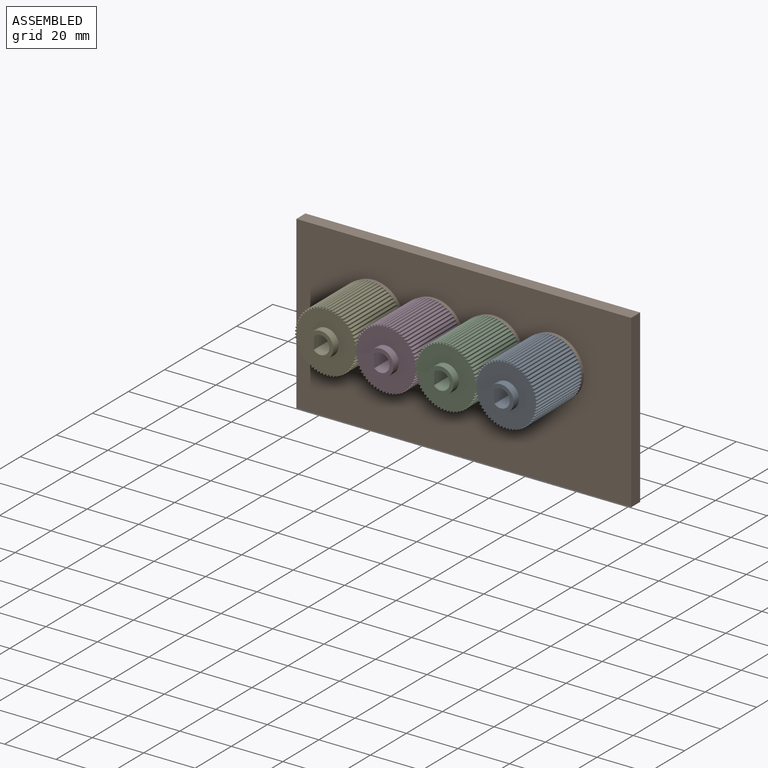
[diagram: assembled view]
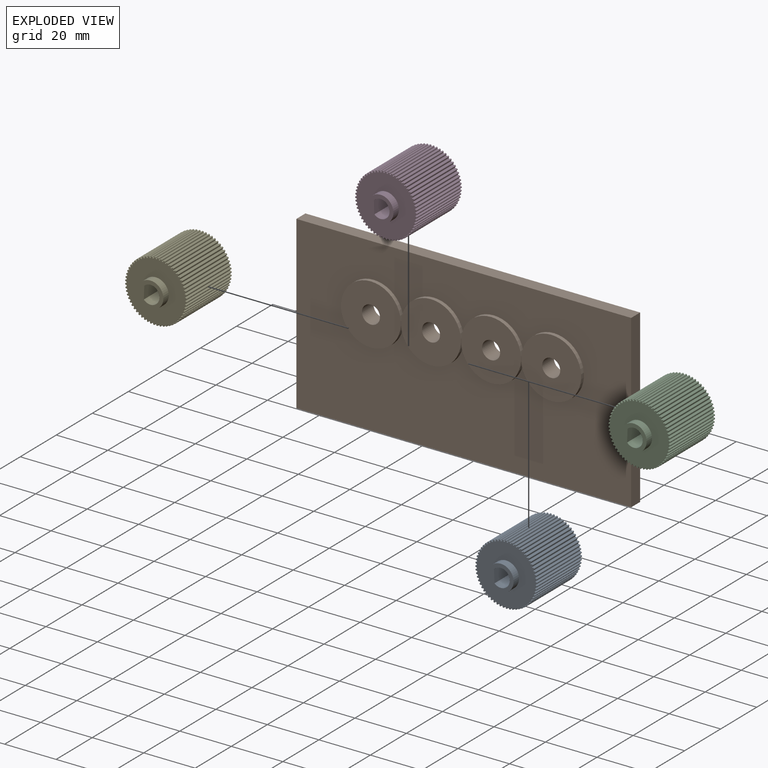
[diagram: exploded view]
GUIDED TOUR — MATED ASSEMBLY (Onshape document a461b10b5617b8be7ff6b4a0, AutoMate assembly a461b10b5617b8be7ff6b4a0_db991699ef675610364aaf17_fc4ede2106fa1990db386158_default)

This assembly has 5 components, labeled P0..P4 below (a component is one placed occurrence of a part; the same part can appear more than once), held together by 4 mates. A mate is a constraint between two components; its type names the relative motion it leaves free:
  REVOLUTE — leaves rotation about the listed axis free (a hinge).
Axis/direction vectors are unit vectors and 'through' points are millimeter coordinates, both in the assembly's world frame.

MATES
  1. REVOLUTE "Revolute 1": P1 <-> P4, axis (0.000, -1.000, 0.000) through (-35.00, -4.00, 8.23) mm
  2. REVOLUTE "Revolute 3": P1 <-> P2, axis (0.000, -1.000, 0.000) through (11.67, -4.00, 8.23) mm
  3. REVOLUTE "Revolute 4": P0 <-> P1, axis (0.000, 1.000, 0.000) through (35.00, -1.00, 8.23) mm
  4. REVOLUTE "Revolute 2": P3 <-> P1, axis (0.000, 1.000, 0.000) through (-11.67, -1.00, 8.23) mm

ASSEMBLY ORDER
  1. P1 — the base component [order verified]
  2. P2 [order verified]
  3. P4 [order verified]
  4. P0 [order verified]
  5. P3 [order verified]
Order-tag legend:
  [order verified] — this step's position reverses a verified removal order: the component was checked to insert without passing through the ones already placed.

Of the 5 components, 1 carries the full construction recipe — the FeatureScript program that regenerates the part's solid from scratch; the rest are supplied as boundary geometry only.
Each toured component is shown spotlighted twice — in the assembled view, then in the exploded view, where a leader line traces a displaced component back to its assembled socket (saturated green if recipe-attached, orange if geometry-only; every other component desaturated gray) — followed by its recipe or geometry summary and the mates that hold it.
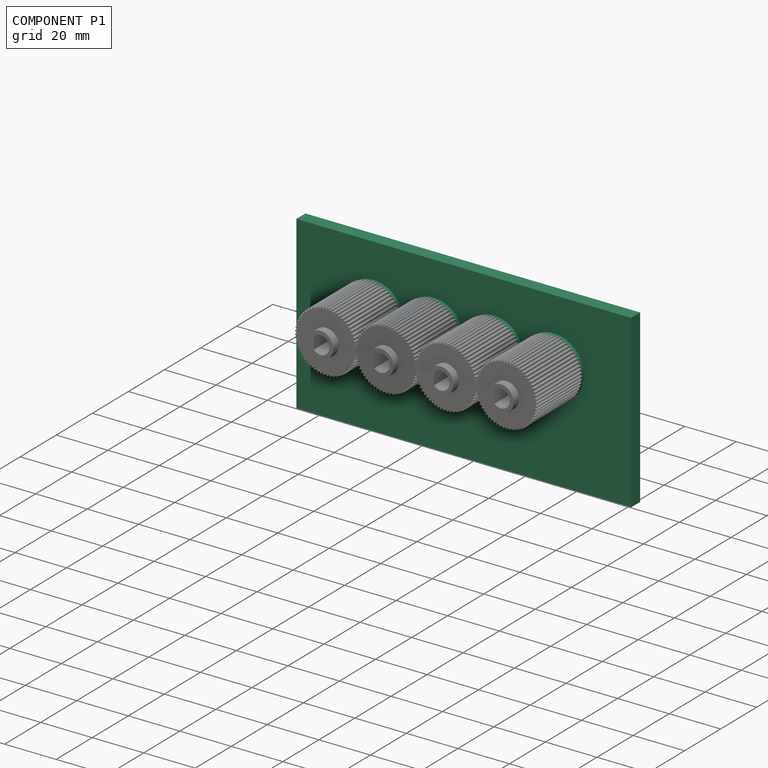
[diagram: component P1 — assembled]
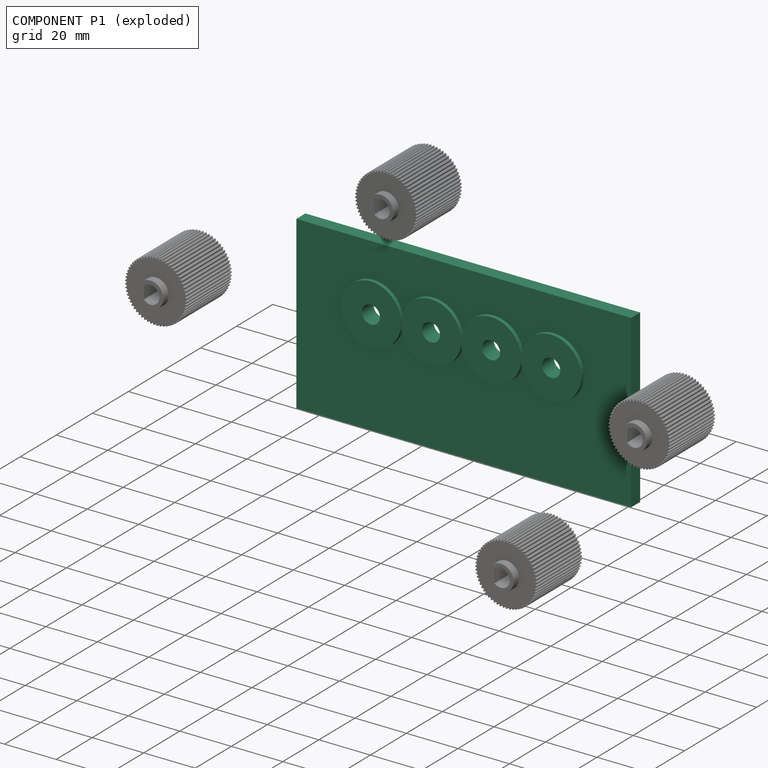
[diagram: component P1 — exploded]
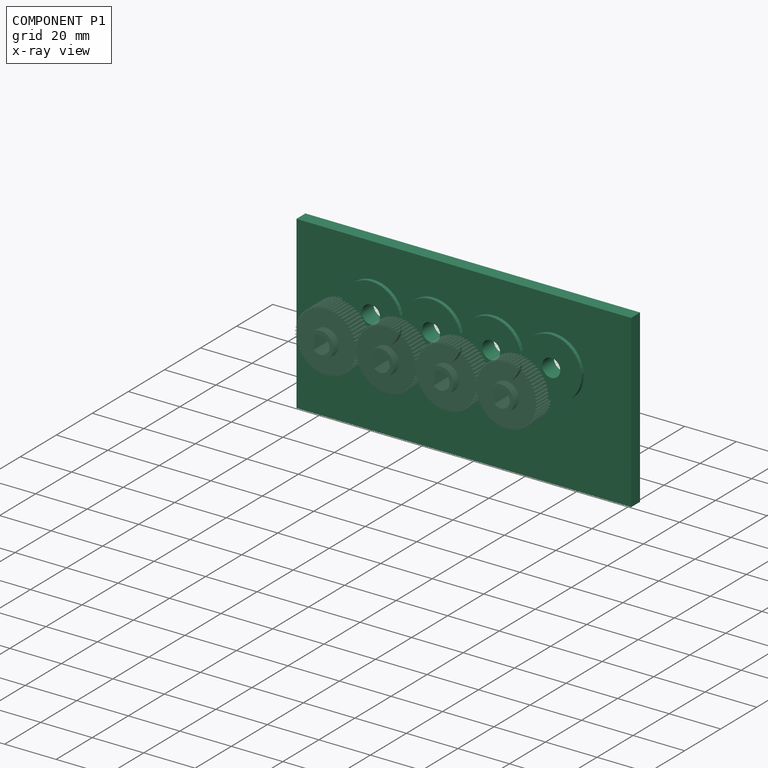
[diagram: component P1 — x-ray view]
COMPONENT P1 — recipe-attached (CADFS 00826265, mesh-verified: the recipe's output STEP matches this component's geometry to below the mesh-comparison resolution (tessellation chordal tolerance ~0.219 mm)).
Held by: REVOLUTE mate "Revolute 1" to P4; REVOLUTE mate "Revolute 3" to P2; REVOLUTE mate "Revolute 4" to P0; REVOLUTE mate "Revolute 2" to P3.
Construction recipe (FeatureScript — the CAD program that rebuilds this solid; sketch coordinates are in the units given by the * unit suffixes, e.g. mm):

FeatureScript 1511;
import(path : "onshape/std/geometry.fs", version : "1511.0");
import(path : "onshape/std/common.fs", version : "1511.0");
const mm = millimeter;
const VERTEX = EntityType.VERTEX;
const EDGE = EntityType.EDGE;
const FACE = EntityType.FACE;
const BODY = EntityType.BODY;
function v(x, y){return vector(x, y);}
function OD(order){return orderDisambiguation(order);}
function OSD(set){return originalSetDisambiguation(set);}
function TD(topology){return topologyDisambiguation(topology);}
function TDD(query){return trueDependencyDisambiguation(query);}
function sQuery(a, b, c) {return sketchEntityQuery(a, b, c);}

annotation { "Feature Type Name" : "Feature", "Feature Type Description" : "" }
export const myFeature = defineFeature(function(context is Context, id is Id, definition is map)
    precondition{}
    {
        {
            var Q0;
            Q0=qCreatedBy(makeId("Front.planeOp"),FACE);
            var sketch = newSketch(context, id + "F0", { "sketchPlane" : qUnion([Q0])});
            skLineSegment(sketch, "E0", {"start": v(-65, 33.23) * mm, "end": v(65, 33.23) * mm});
            skLineSegment(sketch, "E1", {"start": v(65, 33.23) * mm, "end": v(65, -33.23) * mm});
            skLineSegment(sketch, "E2", {"start": v(65, -33.23) * mm, "end": v(-65, -33.23) * mm});
            skLineSegment(sketch, "E3", {"start": v(-65, -33.23) * mm, "end": v(-65, 33.23) * mm});
            skLineSegment(sketch, "E4", {"start": v(0, 0) * mm, "end": v(0, 33.23) * mm, "construction": true});
            skLineSegment(sketch, "E5", {"start": v(0, 0) * mm, "end": v(-65, 0) * mm, "construction": true});
            skCircle(sketch, "E6", {"center": v(35, 8.23) * mm, "radius": 11.65 * mm});
            skCircle(sketch, "E7", {"center": v(-35, 8.23) * mm, "radius": 11.65 * mm});
            skLineSegment(sketch, "E8", {"start": v(-35, 8.23) * mm, "end": v(-35, 33.23) * mm, "construction": true});
            skLineSegment(sketch, "E9", {"start": v(-35, 8.23) * mm, "end": v(-65, 8.23) * mm, "construction": true});
            skLineSegment(sketch, "E10", {"start": v(65, 8.23) * mm, "end": v(35, 8.23) * mm, "construction": true});
            skLineSegment(sketch, "E11", {"start": v(35, 8.23) * mm, "end": v(35, 33.23) * mm, "construction": true});
            skLineSegment(sketch, "E12", {"start": v(-35, 8.23) * mm, "end": v(0, 8.23) * mm, "construction": true});
            skLineSegment(sketch, "E13", {"start": v(35, 8.23) * mm, "end": v(0, 8.23) * mm, "construction": true});
            skCircle(sketch, "E14", {"center": v(-35, 8.23) * mm, "radius": 3.5 * mm});
            skCircle(sketch, "E15", {"center": v(35, 8.23) * mm, "radius": 3.5 * mm});
            skLineSegment(sketch, "E16", {"start": v(-23.33, 8.23) * mm, "end": v(-23.33, 33.23) * mm, "construction": true});
            skLineSegment(sketch, "E17", {"start": v(-11.67, 8.23) * mm, "end": v(-11.67, 33.23) * mm, "construction": true});
            skLineSegment(sketch, "E18", {"start": v(0, 8.23) * mm, "end": v(0, 33.23) * mm});
            skLineSegment(sketch, "E19", {"start": v(11.67, 8.23) * mm, "end": v(11.67, 33.23) * mm, "construction": true});
            skLineSegment(sketch, "E20", {"start": v(23.33, 33.23) * mm, "end": v(23.33, 8.23) * mm, "construction": true});
            skCircle(sketch, "E21", {"center": v(-11.67, 8.23) * mm, "radius": 11.65 * mm});
            skCircle(sketch, "E22", {"center": v(11.67, 8.23) * mm, "radius": 11.65 * mm});
            skCircle(sketch, "E23", {"center": v(-11.67, 8.23) * mm, "radius": 3.5 * mm});
            skCircle(sketch, "E24", {"center": v(11.67, 8.23) * mm, "radius": 3.5 * mm});
            skSolve(sketch);
        }
        {
            var Q0;
            Q0=makeQuery(id+"F0.imprint","IMPRINT",FACE,{"disambiguationData":[TD([[makeQuery(id+"F0.imprint","IMPRINT",EDGE,{"derivedFrom":sQuery(id+"F0.wireOp",EDGE,"E21")}),1.0]])]});
            var Q1;
            Q1=makeQuery(id+"F0.imprint","IMPRINT",FACE,{"disambiguationData":[TD([[makeQuery(id+"F0.imprint","IMPRINT",EDGE,{"derivedFrom":sQuery(id+"F0.wireOp",EDGE,"E22")}),1.0]])]});
            var Q2;
            Q2=makeQuery(id+"F0.imprint","IMPRINT",FACE,{"disambiguationData":[TD([[makeQuery(id+"F0.imprint","IMPRINT",EDGE,{"derivedFrom":sQuery(id+"F0.wireOp",EDGE,"E6")}),1.0]])]});
            var Q3;
            Q3=makeQuery(id+"F0.imprint","IMPRINT",FACE,{"disambiguationData":[TD([[makeQuery(id+"F0.imprint","IMPRINT",EDGE,{"derivedFrom":sQuery(id+"F0.wireOp",EDGE,"E7")}),1.0]])]});
            var Q4;
            {var subQ0=sQuery(id+"F0.wireOp",EDGE,"E1");Q4=makeQuery(id+"F0.imprint","IMPRINT",FACE,{"disambiguationData":[TD([[makeQuery(id+"F0.imprint","IMPRINT",EDGE,{"derivedFrom":subQ0}),-1.0]])]});}
            extrude(context, id + "F1", {"entities" : qUnion([Q0, Q1, Q2, Q3, Q4]), "endBound" : BoundingType.SYMMETRIC, "depth" : 5 * mm, "offsetDistance" : 25 * mm});
        }
        {
            var Q0;
            Q0=makeQuery(id+"F0.imprint","IMPRINT",FACE,{"disambiguationData":[TD([[makeQuery(id+"F0.imprint","IMPRINT",EDGE,{"derivedFrom":sQuery(id+"F0.wireOp",EDGE,"E6")}),1.0]])]});
            extrude(context, id + "F2", {"entities" : qUnion([Q0]), "operationType" : NewBodyOperationType.ADD, "depth" : 4 * mm, "offsetDistance" : 25 * mm});
        }
        {
            var Q0;
            Q0=makeQuery(id+"F0.imprint","IMPRINT",FACE,{"disambiguationData":[TD([[makeQuery(id+"F0.imprint","IMPRINT",EDGE,{"derivedFrom":sQuery(id+"F0.wireOp",EDGE,"E7")}),1.0]])]});
            extrude(context, id + "F3", {"entities" : qUnion([Q0]), "operationType" : NewBodyOperationType.ADD, "depth" : 4 * mm, "offsetDistance" : 25 * mm});
        }
        {
            var Q0;
            Q0=makeQuery(id+"F0.imprint","IMPRINT",FACE,{"disambiguationData":[TD([[makeQuery(id+"F0.imprint","IMPRINT",EDGE,{"derivedFrom":sQuery(id+"F0.wireOp",EDGE,"E21")}),1.0]])]});
            extrude(context, id + "F4", {"entities" : qUnion([Q0]), "operationType" : NewBodyOperationType.ADD, "depth" : 4 * mm, "offsetDistance" : 25 * mm});
        }
        {
            var Q0;
            Q0=makeQuery(id+"F0.imprint","IMPRINT",FACE,{"disambiguationData":[TD([[makeQuery(id+"F0.imprint","IMPRINT",EDGE,{"derivedFrom":sQuery(id+"F0.wireOp",EDGE,"E22")}),1.0]])]});
            extrude(context, id + "F5", {"entities" : qUnion([Q0]), "operationType" : NewBodyOperationType.ADD, "depth" : 4 * mm, "offsetDistance" : 25 * mm});
        }
        {
            var Q0;
            Q0=makeQuery(id+"F0.imprint","IMPRINT",FACE,{"disambiguationData":[TD([[makeQuery(id+"F0.imprint","IMPRINT",EDGE,{"derivedFrom":sQuery(id+"F0.wireOp",EDGE,"E22")}),1.0]])]});
            extrude(context, id + "F6", {"entities" : qUnion([Q0]), "operationType" : NewBodyOperationType.ADD, "depth" : 4 * mm, "offsetDistance" : 25 * mm});
        }
    });
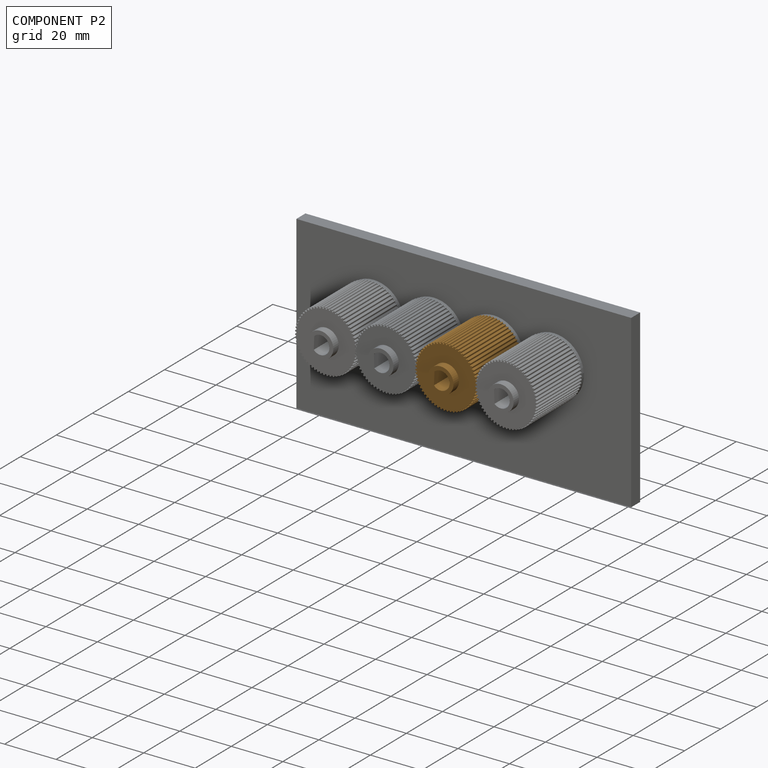
[diagram: component P2 — assembled]
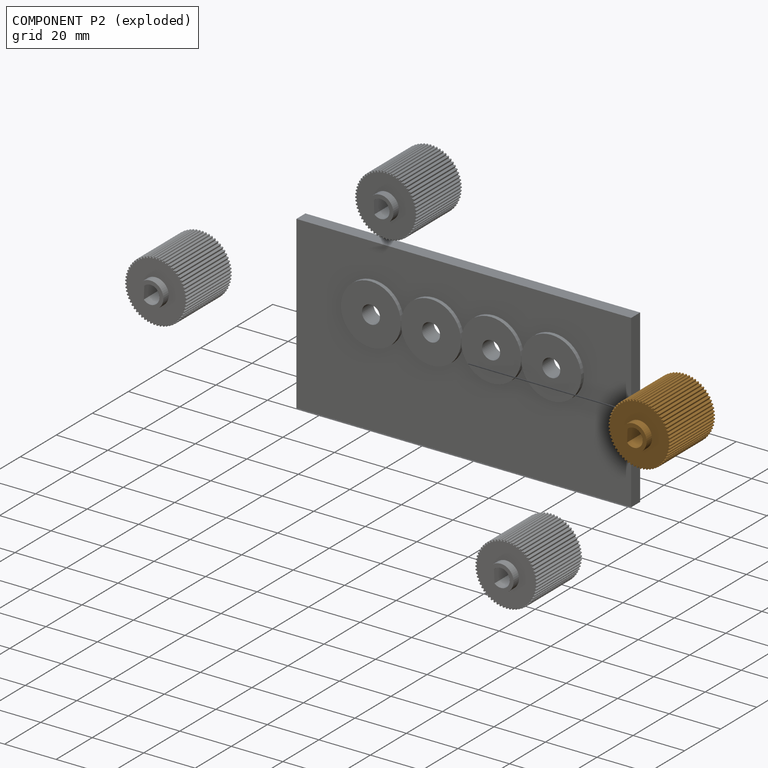
[diagram: component P2 — exploded]
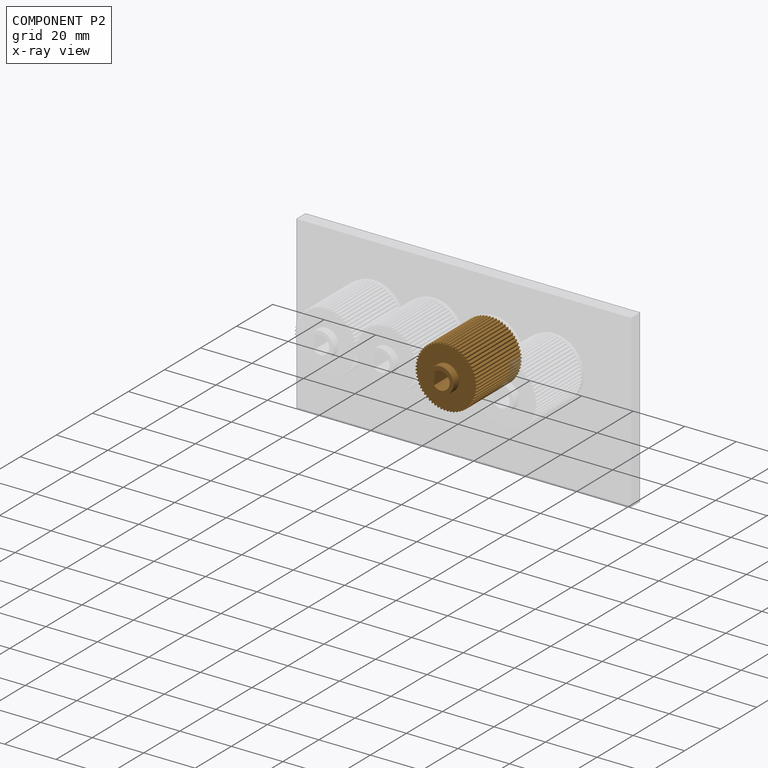
[diagram: component P2 — x-ray view]
COMPONENT P2 — geometry summary (no construction recipe available for this part):
  bounding box: 31.0 x 23.9 x 23.9 mm
  B-rep topology: 1 solid, 128 faces, 746 edges
  volume: 10179 mm^3 (57% of its bounding box)
Held by: REVOLUTE mate "Revolute 3" to P1.
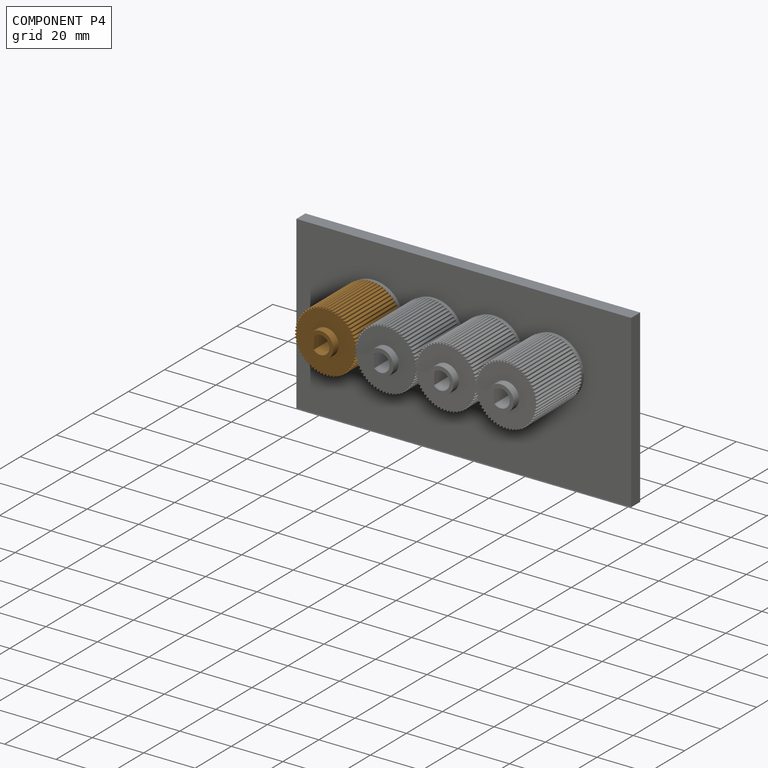
[diagram: component P4 — assembled]
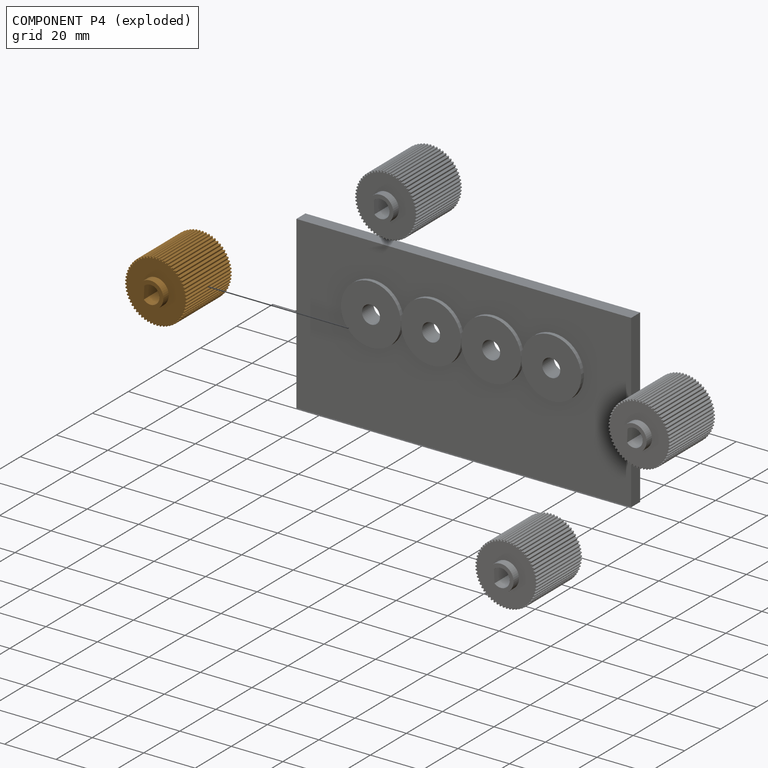
[diagram: component P4 — exploded]
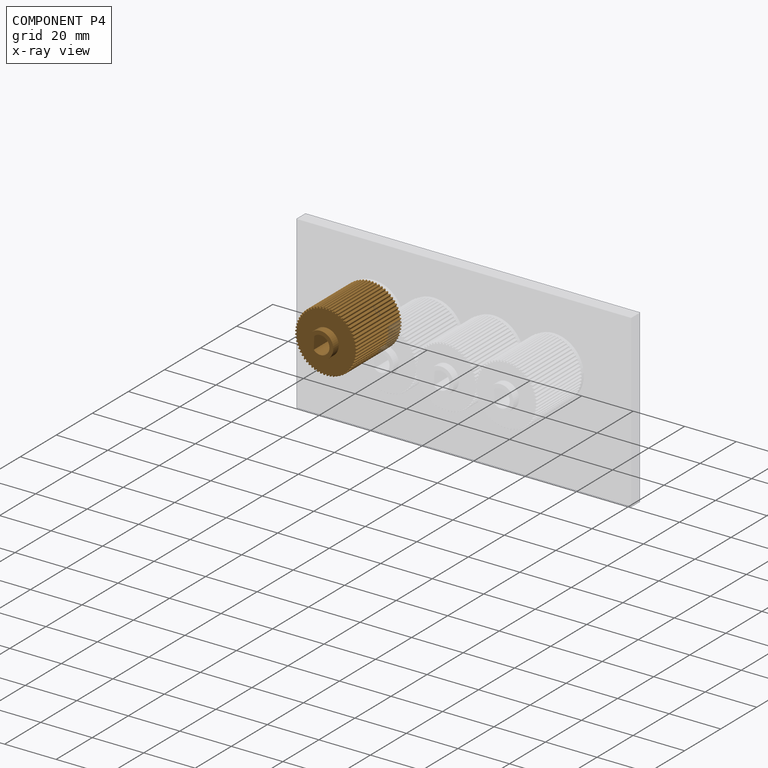
[diagram: component P4 — x-ray view]
COMPONENT P4 — geometry summary (no construction recipe available for this part):
  bounding box: 31.0 x 23.9 x 23.9 mm
  B-rep topology: 1 solid, 128 faces, 746 edges
  volume: 10179 mm^3 (57% of its bounding box)
Held by: REVOLUTE mate "Revolute 1" to P1.
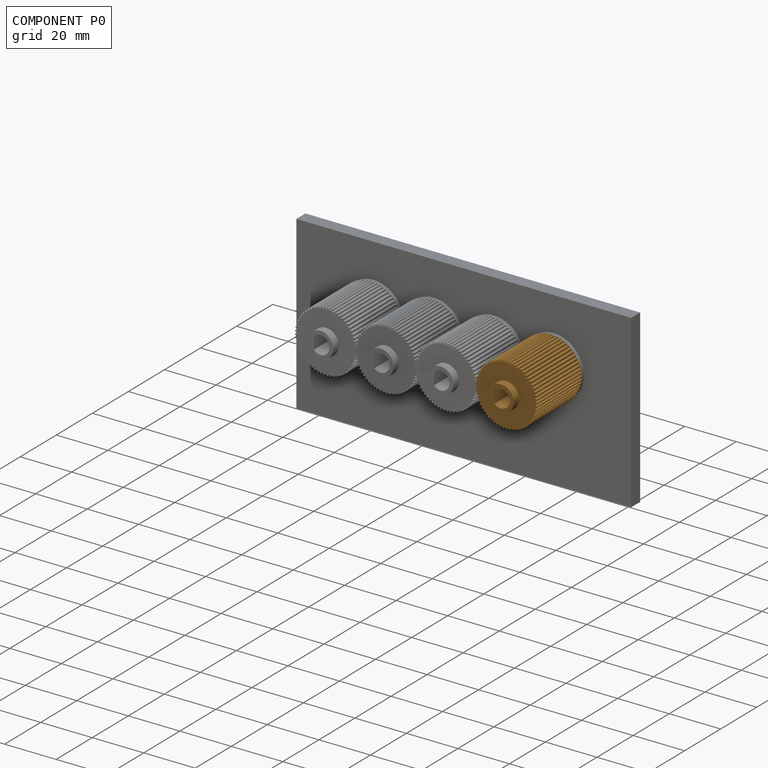
[diagram: component P0 — assembled]
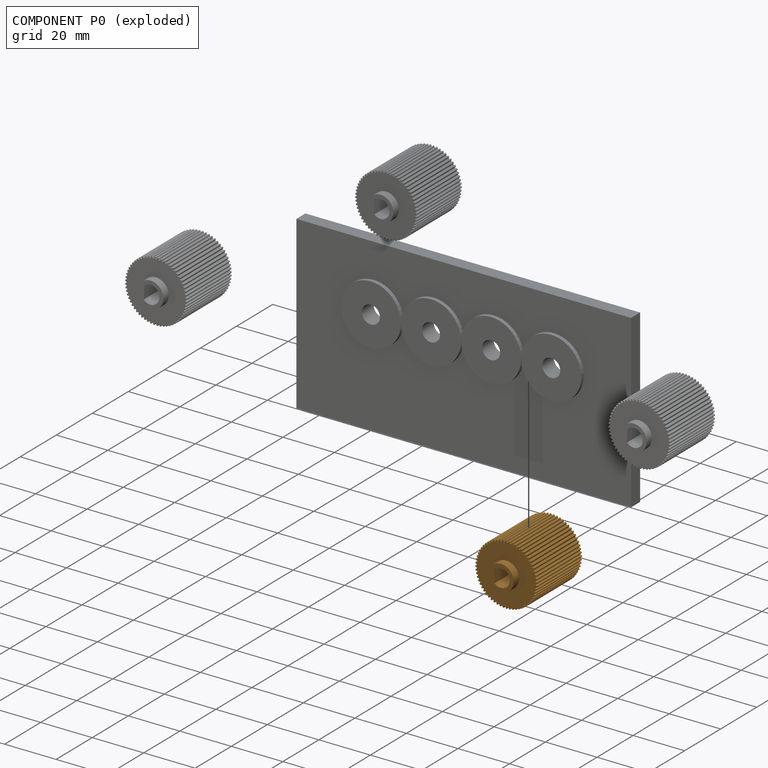
[diagram: component P0 — exploded]
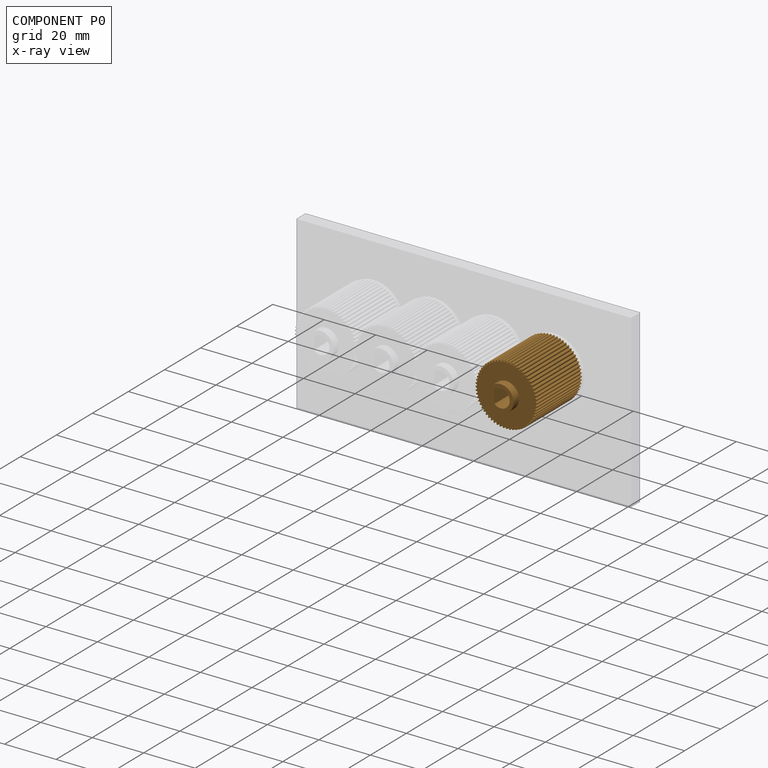
[diagram: component P0 — x-ray view]
COMPONENT P0 — geometry summary (no construction recipe available for this part):
  bounding box: 31.0 x 23.9 x 23.9 mm
  B-rep topology: 1 solid, 128 faces, 746 edges
  volume: 10179 mm^3 (57% of its bounding box)
Held by: REVOLUTE mate "Revolute 4" to P1.
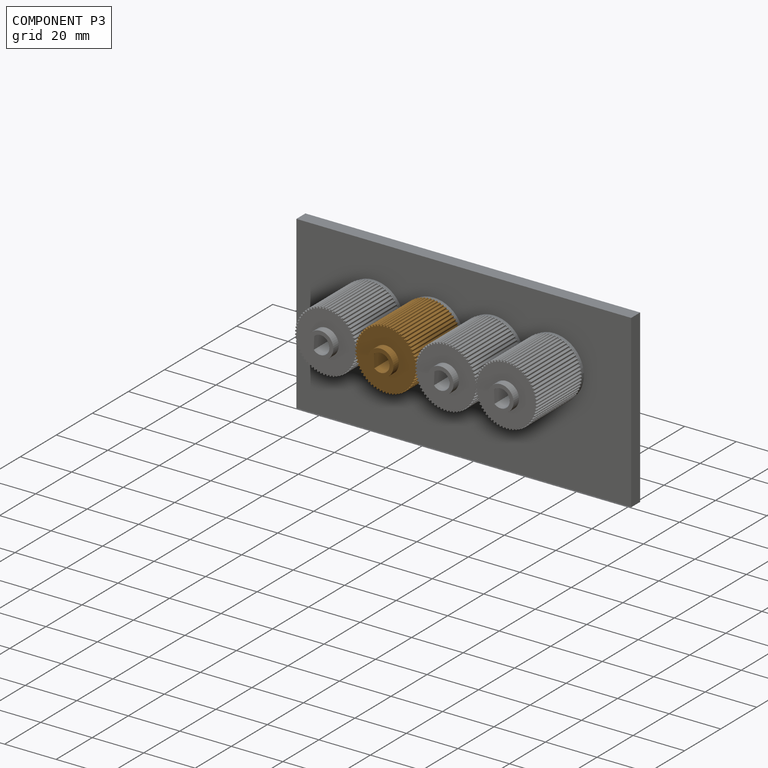
[diagram: component P3 — assembled]
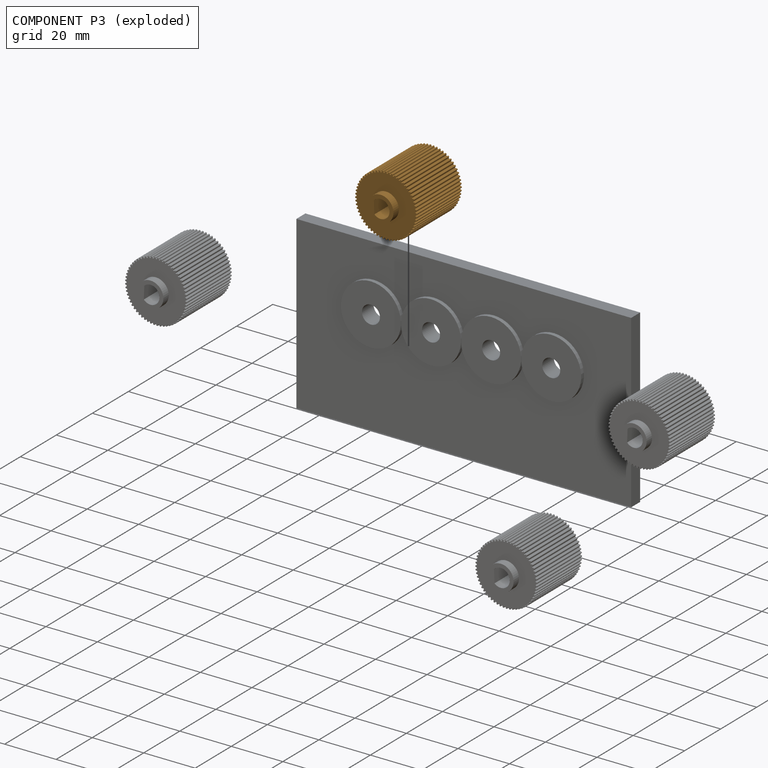
[diagram: component P3 — exploded]
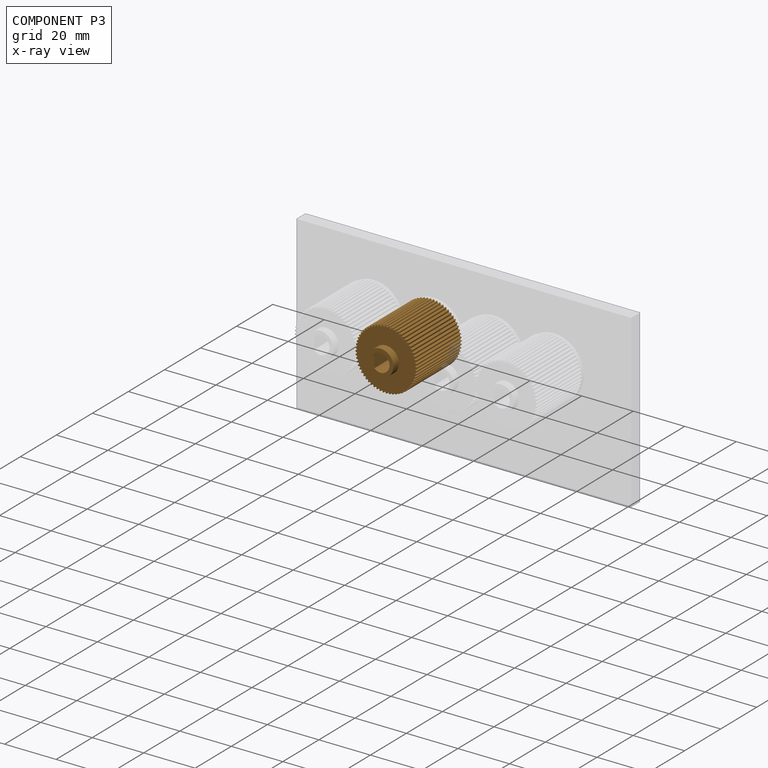
[diagram: component P3 — x-ray view]
COMPONENT P3 — geometry summary (no construction recipe available for this part):
  bounding box: 31.0 x 23.9 x 23.9 mm
  B-rep topology: 1 solid, 128 faces, 746 edges
  volume: 10179 mm^3 (57% of its bounding box)
Held by: REVOLUTE mate "Revolute 2" to P1.
PROVENANCE & LICENSES
Assembly (occurrences, transforms, mates, per-part STEP geometry): AutoMate dataset, Zenodo record 7776208, CC0.
Construction recipes: CADFS (HuggingFace VladPyatov/CADFS, CC-BY-4.0, layered over the ABC dataset), FeatureScript reconstruction programs keyed by ABC model id.
Join: ABC meta listings map ABC model id -> Onshape documentId; within a shared document, parts are matched by geometric signature (bounding-box dims + volume at 0.1% relative tolerance, exact B-rep face/solid counts).
Verification: 1 of this assembly's 5 components carries a recipe attachment, and every attachment is mesh-verified: the CADFS STEP and the AutoMate member STEP were compared as meshes in their shared local frame (symmetric sampled-point-to-mesh distance); worst across the 1 attachment: below the mesh-comparison resolution (tessellation chordal tolerance ~0.219 mm) on a 146 mm part.
Renders: orthographic iso camera (az 35 / el 25); the floor grid conveys scale (grid pitch printed in each image; no ruler). In the exploded view each component is displaced by its stored offset vector: the offsets alone carry the explosion direction (mate normal/axis signs are not orientation cues and do not encode it), and separation distances are assigned per mate-chain, not proportionally to assembly-order depth.
